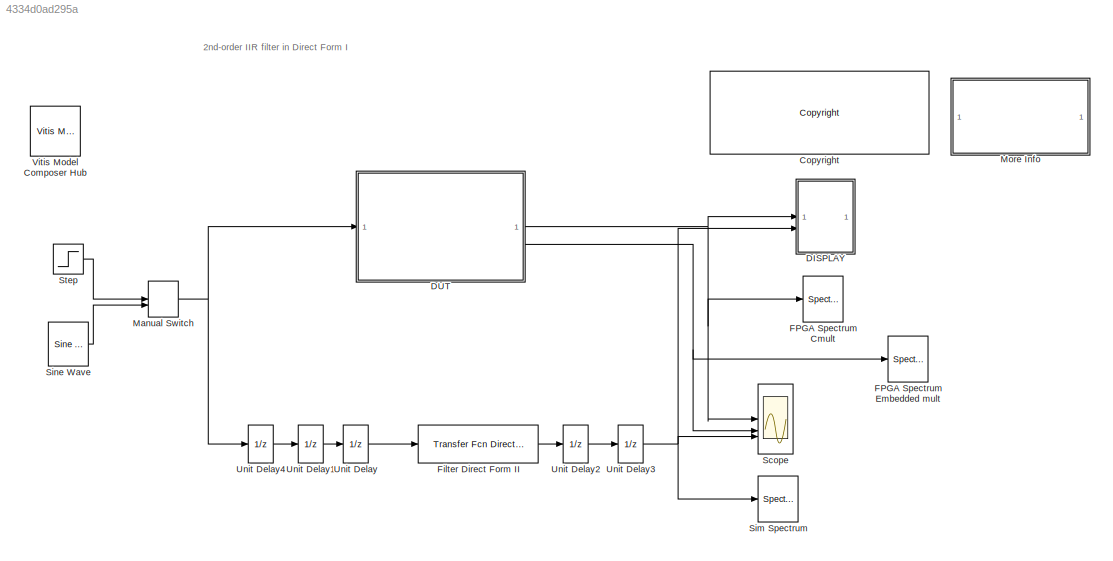
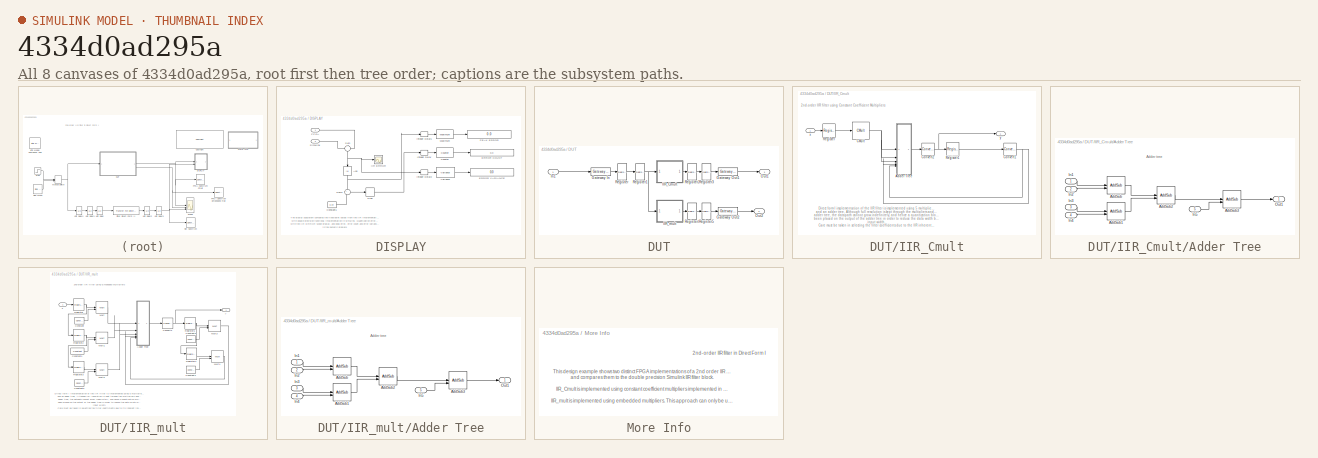
[diagram: thumbnail index - all 8 canvases of the model, root first then tree order]
MODEL slx_4334d0ad295a
KIND model
CONFIG AbsTol = auto
CONFIG EnableMultiTasking = off
CONFIG FixedStep = auto
CONFIG MaxStep = auto
CONFIG MinStep = auto
CONFIG PreLoadFcn = IIR_DFormI_PreLoadFcn
CONFIG RelTol = 1e-3
CONFIG SampleTimeConstraint = Unconstrained
CONFIG SolverName = VariableStepDiscrete
CONFIG StartTime = 0.0
CONFIG StopTime = 20000
BLOCK [Reference] <copyright redacted>
  SourceBlock = hdlUtilities/<copyright redacted>
  SourceType = Xilinx <copyright redacted>
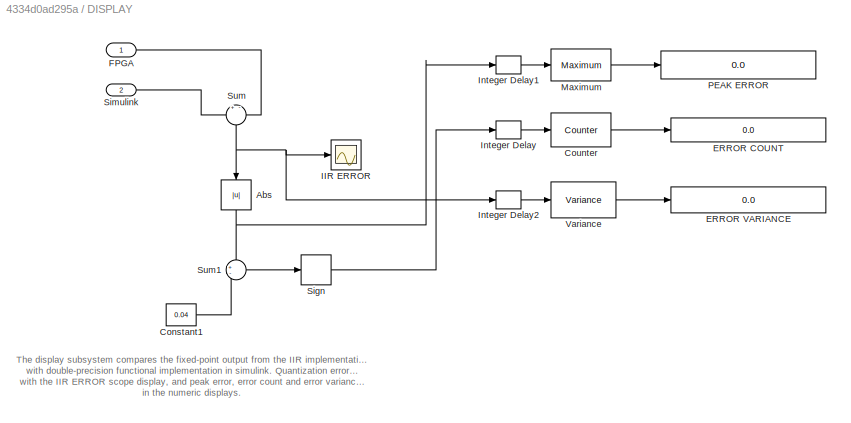
BLOCK [SubSystem] DISPLAY
  NameLocation = top
  TreatAsAtomicUnit = on
BLOCK [Abs] DISPLAY/Abs
  NameLocation = left
BLOCK [Constant] DISPLAY/Constant1
  Value = 0.04
BLOCK [Reference] DISPLAY/Counter  REF=dspswit3/Counter
  SourceBlock = dspswit3/Counter
  SourceType = Counter
BLOCK [Display] DISPLAY/ERROR COUNT
  Decimation = 1
  Format = long_e
BLOCK [Display] DISPLAY/ERROR VARIANCE
  Decimation = 1
  Format = long_e
BLOCK [Inport] DISPLAY/FPGA
BLOCK [Scope] DISPLAY/IIR ERROR
  Floating = off
  NumInputPorts = 1
  ScopeSpecificationString = Simulink.scopes.TimeScopeBlockCfg('CurrentConfiguration', extmgr.ConfigurationSet(extmgr.Configuration('Core','General UI',true,'DisplayFullSourceName',false,'ShowMainToolbar',true),extmgr.Configuration('Sources','WiredSimulink',true,'DataLogging',false,'DataLoggingVariableName','ScopeData2','DataLoggingLimitDataPoints',true,'DataLoggingMaxPoints','5000','DataLoggingDecimateData',true,'DataLogging...<+1579ch>
BLOCK [Delay] DISPLAY/Integer Delay
  DelayLength = 1
  InitialCondition = 0
  InputPortMap = u0
  UseCircularBuffer = on
  UserDataPersistent = on
BLOCK [Delay] DISPLAY/Integer Delay1
  DelayLength = 1
  InitialCondition = 0
  InputPortMap = u0
  UseCircularBuffer = on
  UserDataPersistent = on
BLOCK [Delay] DISPLAY/Integer Delay2
  DelayLength = 1
  InitialCondition = 0
  InputPortMap = u0
  UseCircularBuffer = on
  UserDataPersistent = on
BLOCK [Reference] DISPLAY/Maximum  REF=dspstat3/Maximum
  SourceBlock = dspstat3/Maximum
  SourceType = Maximum
  UserDataPersistent = on
BLOCK [Display] DISPLAY/PEAK ERROR
  Decimation = 1
  Format = long_e
BLOCK [Signum] DISPLAY/Sign
BLOCK [Inport] DISPLAY/Simulink
  Port = 2
BLOCK [Sum] DISPLAY/Sum
  InputSameDT = on
  Inputs = +-
  NameLocation = left
  OutDataTypeStr = Inherit: Same as first input
  SaturateOnIntegerOverflow = on
BLOCK [Sum] DISPLAY/Sum1
  InputSameDT = on
  Inputs = +-
  OutDataTypeStr = Inherit: Same as first input
  SaturateOnIntegerOverflow = on
BLOCK [Reference] DISPLAY/Variance  REF=dspstat3/Variance
  SourceBlock = dspstat3/Variance
  SourceType = Variance
  UserDataPersistent = on
BLOCK [SubSystem] DUT
BLOCK [Reference] DUT/Gateway In  REF=hdlBasic/Gateway In
  SourceBlock = hdlBasic/Gateway In
  SourceType = Gateway In Block
BLOCK [Reference] DUT/Gateway Out1  REF=hdlBasic/Gateway Out
  SourceBlock = hdlBasic/Gateway Out
  SourceType = Gateway Out Block
BLOCK [Reference] DUT/Gateway Out2  REF=hdlBasic/Gateway Out
  SourceBlock = hdlBasic/Gateway Out
  SourceType = Gateway Out Block
BLOCK [SubSystem] DUT/IIR_Cmult
BLOCK [SubSystem] DUT/IIR_Cmult/Adder Tree
BLOCK [Reference] DUT/IIR_Cmult/Adder Tree/AddSub  REF=hdlBasic/AddSub
  SourceBlock = hdlBasic/AddSub
  SourceType = Adder/Subtracter Block
BLOCK [Reference] DUT/IIR_Cmult/Adder Tree/AddSub1  REF=hdlBasic/AddSub
  SourceBlock = hdlBasic/AddSub
  SourceType = Adder/Subtracter Block
BLOCK [Reference] DUT/IIR_Cmult/Adder Tree/AddSub2  REF=hdlBasic/AddSub
  SourceBlock = hdlBasic/AddSub
  SourceType = Adder/Subtracter Block
BLOCK [Reference] DUT/IIR_Cmult/Adder Tree/AddSub3  REF=hdlBasic/AddSub
  SourceBlock = hdlBasic/AddSub
  SourceType = Adder/Subtracter Block
BLOCK [Inport] DUT/IIR_Cmult/Adder Tree/In1
BLOCK [Inport] DUT/IIR_Cmult/Adder Tree/In2
  Port = 2
BLOCK [Inport] DUT/IIR_Cmult/Adder Tree/In3
  Port = 3
BLOCK [Inport] DUT/IIR_Cmult/Adder Tree/In4
  Port = 4
BLOCK [Inport] DUT/IIR_Cmult/Adder Tree/In5
  Port = 5
BLOCK [Outport] DUT/IIR_Cmult/Adder Tree/Out1
  VectorParamsAs1DForOutWhenUnconnected = off
BLOCK [Reference] DUT/IIR_Cmult/CMult  REF=hdlBasic/CMult
  SourceBlock = hdlBasic/CMult
  SourceType = Constant Multiplier Block
BLOCK [Reference] DUT/IIR_Cmult/Convert1  REF=hdlBasic/Convert
  SourceBlock = hdlBasic/Convert
  SourceType = Type Converter Block
BLOCK [Reference] DUT/IIR_Cmult/Convert2  REF=hdlBasic/Convert
  SourceBlock = hdlBasic/Convert
  SourceType = Type Converter Block
BLOCK [Reference] DUT/IIR_Cmult/Register  REF=hdlBasic/Register
  SourceBlock = hdlBasic/Register
  SourceType = Register Block
BLOCK [Reference] DUT/IIR_Cmult/Register1  REF=hdlBasic/Register
  SourceBlock = hdlBasic/Register
  SourceType = Register Block
BLOCK [Inport] DUT/IIR_Cmult/x
BLOCK [Outport] DUT/IIR_Cmult/y
  VectorParamsAs1DForOutWhenUnconnected = off
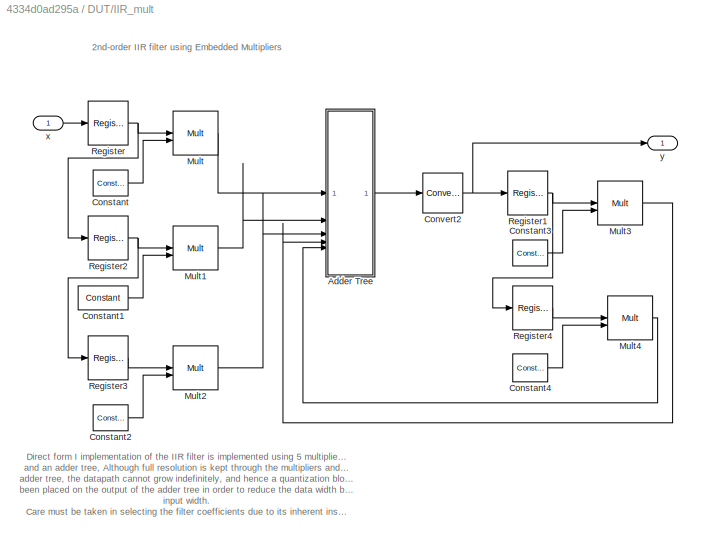
BLOCK [SubSystem] DUT/IIR_mult
BLOCK [SubSystem] DUT/IIR_mult/Adder Tree
BLOCK [Reference] DUT/IIR_mult/Adder Tree/AddSub  REF=hdlBasic/AddSub
  SourceBlock = hdlBasic/AddSub
  SourceType = Adder/Subtracter Block
BLOCK [Reference] DUT/IIR_mult/Adder Tree/AddSub1  REF=hdlBasic/AddSub
  SourceBlock = hdlBasic/AddSub
  SourceType = Adder/Subtracter Block
BLOCK [Reference] DUT/IIR_mult/Adder Tree/AddSub2  REF=hdlBasic/AddSub
  SourceBlock = hdlBasic/AddSub
  SourceType = Adder/Subtracter Block
BLOCK [Reference] DUT/IIR_mult/Adder Tree/AddSub3  REF=hdlBasic/AddSub
  SourceBlock = hdlBasic/AddSub
  SourceType = Adder/Subtracter Block
BLOCK [Inport] DUT/IIR_mult/Adder Tree/In1
BLOCK [Inport] DUT/IIR_mult/Adder Tree/In2
  Port = 2
BLOCK [Inport] DUT/IIR_mult/Adder Tree/In3
  Port = 3
BLOCK [Inport] DUT/IIR_mult/Adder Tree/In4
  Port = 4
BLOCK [Inport] DUT/IIR_mult/Adder Tree/In5
  Port = 5
BLOCK [Outport] DUT/IIR_mult/Adder Tree/Out1
  VectorParamsAs1DForOutWhenUnconnected = off
BLOCK [Reference] DUT/IIR_mult/Constant  REF=hdlBasic/Constant
  SourceBlock = hdlBasic/Constant
  SourceType = Constant Block Block
BLOCK [Reference] DUT/IIR_mult/Constant1  REF=hdlBasic/Constant
  SourceBlock = hdlBasic/Constant
  SourceType = Constant Block Block
BLOCK [Reference] DUT/IIR_mult/Constant2  REF=hdlBasic/Constant
  SourceBlock = hdlBasic/Constant
  SourceType = Constant Block Block
BLOCK [Reference] DUT/IIR_mult/Constant3  REF=hdlBasic/Constant
  SourceBlock = hdlBasic/Constant
  SourceType = Constant Block Block
BLOCK [Reference] DUT/IIR_mult/Constant4  REF=hdlBasic/Constant
  SourceBlock = hdlBasic/Constant
  SourceType = Constant Block Block
BLOCK [Reference] DUT/IIR_mult/Convert2  REF=hdlBasic/Convert
  SourceBlock = hdlBasic/Convert
  SourceType = Type Converter Block
BLOCK [Reference] DUT/IIR_mult/Mult  REF=hdlBasic/Mult
  SourceBlock = hdlBasic/Mult
  SourceType = Multiplier Block
BLOCK [Reference] DUT/IIR_mult/Mult1  REF=hdlBasic/Mult
  SourceBlock = hdlBasic/Mult
  SourceType = Multiplier Block
BLOCK [Reference] DUT/IIR_mult/Mult2  REF=hdlBasic/Mult
  SourceBlock = hdlBasic/Mult
  SourceType = Multiplier Block
BLOCK [Reference] DUT/IIR_mult/Mult3  REF=hdlBasic/Mult
  SourceBlock = hdlBasic/Mult
  SourceType = Multiplier Block
BLOCK [Reference] DUT/IIR_mult/Mult4  REF=hdlBasic/Mult
  SourceBlock = hdlBasic/Mult
  SourceType = Multiplier Block
BLOCK [Reference] DUT/IIR_mult/Register  REF=hdlBasic/Register
  SourceBlock = hdlBasic/Register
  SourceType = Register Block
BLOCK [Reference] DUT/IIR_mult/Register1  REF=hdlBasic/Register
  SourceBlock = hdlBasic/Register
  SourceType = Register Block
BLOCK [Reference] DUT/IIR_mult/Register2  REF=hdlBasic/Register
  SourceBlock = hdlBasic/Register
  SourceType = Register Block
BLOCK [Reference] DUT/IIR_mult/Register3  REF=hdlBasic/Register
  SourceBlock = hdlBasic/Register
  SourceType = Register Block
BLOCK [Reference] DUT/IIR_mult/Register4  REF=hdlBasic/Register
  SourceBlock = hdlBasic/Register
  SourceType = Register Block
BLOCK [Inport] DUT/IIR_mult/x
BLOCK [Outport] DUT/IIR_mult/y
  VectorParamsAs1DForOutWhenUnconnected = off
BLOCK [Inport] DUT/In1
BLOCK [Outport] DUT/Out1
BLOCK [Outport] DUT/Out2
  Port = 2
BLOCK [Reference] DUT/Register  REF=hdlBasic/Register
  SourceBlock = hdlBasic/Register
  SourceType = Register Block
BLOCK [Reference] DUT/Register1  REF=hdlBasic/Register
  SourceBlock = hdlBasic/Register
  SourceType = Register Block
BLOCK [Reference] DUT/Register2  REF=hdlBasic/Register
  SourceBlock = hdlBasic/Register
  SourceType = Register Block
BLOCK [Reference] DUT/Register3  REF=hdlBasic/Register
  SourceBlock = hdlBasic/Register
  SourceType = Register Block
BLOCK [Reference] DUT/Register4  REF=hdlBasic/Register
  SourceBlock = hdlBasic/Register
  SourceType = Register Block
BLOCK [Reference] DUT/Register5  REF=hdlBasic/Register
  SourceBlock = hdlBasic/Register
  SourceType = Register Block
BLOCK [SpectrumAnalyzer] FPGA Spectrum Cmult
  AllowFFTLengthLessThanSamplesPerUpdate = on
  AveragingMethod = Exponential
  CenterFrequency = 0.25
  ChannelNames = [""]
  DefaultConfigurationName = spbscopes.SpectrumAnalyzerBlockCfg
  FFTLength = 128
  GraphicalSettings = {"GraphicalSettings":{"SpectralMask":{"CustomReferenceLevel":"0","EnabledMasks":"None","LowerMask":"-Inf","MaskFrequencyOffset":"0","ReferenceLevel":"Custom","SelectedChannel":"1","UpperMask":"Inf"},"Style":{"AxesColor":"[0 0 0]","DefaultMarker":"none","DisplayName":"","LabelsColor":"[0.686274509804 0.686274509804 0.686274509804]","Line":"1","LineColor":"[[1      0.9098     0.39216]]","LineStyle":...<+215ch>  <repeated x3 — deduplicated; at blocks: FPGA Spectrum Cmult, FPGA Spectrum Embedded mult, Sim Spectrum>
  Method = Welch
  PlotAsTwoSidedSpectrum = off
  RBW = 0.00293262012
  RBWSource = Property
  SampleRate = 1
  ScopeFrameLocation = window
  ScopeSpecificationString = spbscopes.SpectrumAnalyzerBlockCfg('CurrentConfiguration', extmgr.ConfigurationSet(extmgr.Configuration('Core','General UI',true,'FigureColor',[0.16        0.16        0.16]),extmgr.Configuration('Visuals','Spectrum',true,'Title','','YLabel','Magnitude','MinYLim','-419.8492','MaxYLim','73.7242','Legend',false,'AxesProperties',struct('XGrid',{'on','on'},'YGrid',{'on','on'},'ZGrid',{'on','on'},'Colo...<+2317ch>
  Span = 0.5
  SpectrumType = Power density
  StartFrequency = 0
  StopFrequency = 0.5
  Visible = on
  WasSavedAsWebScope = on
  WindowPosition = [465.000000,290.000000,423.000000,236.000000,]
  YLabel = Magnitude
  YLimits = [-419.8492,73.7242]
BLOCK [SpectrumAnalyzer] FPGA Spectrum Embedded mult
  AllowFFTLengthLessThanSamplesPerUpdate = on
  AveragingMethod = Exponential
  CenterFrequency = 0.25
  ChannelNames = [""]
  DefaultConfigurationName = spbscopes.SpectrumAnalyzerBlockCfg
  FFTLength = 128
  Method = Welch
  PlotAsTwoSidedSpectrum = off
  RBW = 0.00293262012
  RBWSource = Property
  SampleRate = 1
  ScopeFrameLocation = window
  ScopeSpecificationString = spbscopes.SpectrumAnalyzerBlockCfg('CurrentConfiguration', extmgr.ConfigurationSet(extmgr.Configuration('Core','General UI',true,'FigureColor',[0.16        0.16        0.16]),extmgr.Configuration('Visuals','Spectrum',true,'Title','','YLabel','Magnitude','MinYLim','-3637.3349','MaxYLim','405.3922','Legend',false,'AxesProperties',struct('XGrid',{'on','on'},'YGrid',{'on','on'},'ZGrid',{'on','on'},'Co...<+2320ch>
  Span = 0.5
  SpectrumType = Power density
  StartFrequency = 0
  StopFrequency = 0.5
  Visible = on
  WasSavedAsWebScope = on
  WindowPosition = [1002.000000,398.000000,423.000000,236.000000,]
  YLabel = Magnitude
  YLimits = [-3637.3349,405.3922]
BLOCK [Reference] Filter Direct Form II  REF=simulink/Additional Math
& Discrete/Additional
Discrete/Transfer Fcn
Direct Form II
  SourceBlock = simulink/Additional Math\n& Discrete/Additional\nDiscrete/Transfer Fcn\nDirect Form II
  SourceType = Transfer Fcn Direct Form II
BLOCK [ManualSwitch] Manual Switch
  CurrentSetting = 0
BLOCK [SubSystem] More Info
BLOCK [Scope] Scope
  Floating = off
  NumInputPorts = 3
  ScopeSpecificationString = Simulink.scopes.TimeScopeBlockCfg('CurrentConfiguration', extmgr.ConfigurationSet(extmgr.Configuration('Core','General UI',true,'DisplayFullSourceName',false,'ShowMainToolbar',true),extmgr.Configuration('Sources','WiredSimulink',true,'DataLogging',false,'DataLoggingVariableName','ScopeData1','DataLoggingLimitDataPoints',true,'DataLoggingMaxPoints','5000','DataLoggingDecimateData',true,'DataLogging...<+3525ch>
BLOCK [SpectrumAnalyzer] Sim Spectrum
  AllowFFTLengthLessThanSamplesPerUpdate = on
  AveragingMethod = Exponential
  CenterFrequency = 0.25
  ChannelNames = [""]
  DefaultConfigurationName = spbscopes.SpectrumAnalyzerBlockCfg
  FFTLength = 128
  Method = Welch
  PlotAsTwoSidedSpectrum = off
  RBW = 0.00293262012
  RBWSource = Property
  SampleRate = 1
  ScopeFrameLocation = window
  ScopeSpecificationString = spbscopes.SpectrumAnalyzerBlockCfg('CurrentConfiguration', extmgr.ConfigurationSet(extmgr.Configuration('Core','General UI',true,'FigureColor',[0.16        0.16        0.16]),extmgr.Configuration('Visuals','Spectrum',true,'Title','','YLabel','Magnitude','MinYLim','-374.0793','MaxYLim','42.8241','Legend',false,'AxesProperties',struct('XGrid',{'on','on'},'YGrid',{'on','on'},'ZGrid',{'on','on'},'Colo...<+2317ch>
  Span = 0.5
  SpectrumType = Power density
  StartFrequency = 0
  StopFrequency = 0.5
  Visible = on
  WasSavedAsWebScope = on
  WindowPosition = [458.000000,283.000000,437.000000,227.000000,]
  YLabel = Magnitude
  YLimits = [-374.0793,42.8241]
BLOCK [Reference] Sine Wave  REF=dspsrcs4/Sine Wave
  SourceBlock = dspsrcs4/Sine Wave
  SourceType = Sine Wave
BLOCK [Step] Step
  After = 0
  Before = 1
  SampleTime = 1
BLOCK [UnitDelay] Unit Delay
  HasFrameUpgradeWarning = on
  SampleTime = Fs
BLOCK [UnitDelay] Unit Delay1
  HasFrameUpgradeWarning = on
  SampleTime = Fs
BLOCK [UnitDelay] Unit Delay2
  HasFrameUpgradeWarning = on
  SampleTime = Fs
BLOCK [UnitDelay] Unit Delay3
  HasFrameUpgradeWarning = on
  SampleTime = Fs
BLOCK [UnitDelay] Unit Delay4
  HasFrameUpgradeWarning = on
  SampleTime = Fs
BLOCK [Reference] Vitis Model Composer Hub  REF=vmcUtilities/Vitis Model Composer Hub
  SourceBlock = vmcUtilities/Vitis Model Composer Hub
  SourceType = VMC Hub
  Tag = genX
  UserDataPersistent = on
ANNOTATION (root): 2nd-order IIR filter in Direct Form I
ANNOTATION DISPLAY: The display subsystem compares the fixed-point output from the IIR implementation in FPGA with double-precision functional implementation in simulink. Quantization error can be visualized with the IIR ERROR scope display, and peak error, error count and error variance can be visualized in the numeric displays.
ANNOTATION DUT/IIR_Cmult: 2nd-order IIR filter using Constant Coefficient Multipliers
ANNOTATION DUT/IIR_Cmult: Direct form I implementation of the IIR filter is implemented using 5 multipliers, 5 registers and an adder tree, Although full resolution is kept through the multipliers and the adder tree, the datapath cannot grow indefinitely, and hence a quantization block has been placed on the output of the adder tree in order to reduce the data width back to its input width. Care must be taken in selecting ...<+940ch>
ANNOTATION DUT/IIR_Cmult/Adder Tree: Adder tree
ANNOTATION DUT/IIR_mult: 2nd-order IIR filter using Embedded Multipliers
ANNOTATION DUT/IIR_mult: Direct form I implementation of the IIR filter is implemented using 5 multipliers, 5 registers and an adder tree, Although full resolution is kept through the multipliers and the adder tree, the datapath cannot grow indefinitely, and hence a quantization block has been placed on the output of the adder tree in order to reduce the data width back to its input width. Care must be taken in selecting ...<+691ch>
ANNOTATION DUT/IIR_mult/Adder Tree: Adder tree
ANNOTATION More Info: 2nd-order IIR filter in Direct Form I
ANNOTATION More Info: This design example shows two distinct FPGA implementations of a 2nd order IIR filter in Direct Form I, and compares them to the double precision Simulink IIR filter block. IIR_Cmult is implemented using constant coefficient multipliers implemented in LUTs IIR_mult is implemented using embedded multipliers. This approach can only be used with the FPGAs that provide the embedded multipliers. Multip...<+357ch>
NET DISPLAY/Abs:1 -> DISPLAY/Integer Delay1:1, DISPLAY/Sum1:1
LINE DISPLAY/Constant1:1 -> DISPLAY/Sum1:2
LINE DISPLAY/Counter:1 -> DISPLAY/ERROR COUNT:1
LINE DISPLAY/FPGA:1 -> DISPLAY/Sum:2
LINE DISPLAY/Integer Delay1:1 -> DISPLAY/Maximum:1
LINE DISPLAY/Integer Delay2:1 -> DISPLAY/Variance:1
LINE DISPLAY/Integer Delay:1 -> DISPLAY/Counter:1
LINE DISPLAY/Maximum:1 -> DISPLAY/PEAK ERROR:1
LINE DISPLAY/Sign:1 -> DISPLAY/Integer Delay:1
LINE DISPLAY/Simulink:1 -> DISPLAY/Sum:1
LINE DISPLAY/Sum1:1 -> DISPLAY/Sign:1
NET DISPLAY/Sum:1 -> DISPLAY/Abs:1, DISPLAY/IIR ERROR:1, DISPLAY/Integer Delay2:1
LINE DISPLAY/Variance:1 -> DISPLAY/ERROR VARIANCE:1
LINE DUT/Gateway In:1 -> DUT/Register:1
LINE DUT/Gateway Out1:1 -> DUT/Out1:1
LINE DUT/Gateway Out2:1 -> DUT/Out2:1
LINE DUT/IIR_Cmult/Adder Tree/AddSub1:1 -> DUT/IIR_Cmult/Adder Tree/AddSub2:2
LINE DUT/IIR_Cmult/Adder Tree/AddSub2:1 -> DUT/IIR_Cmult/Adder Tree/AddSub3:1
LINE DUT/IIR_Cmult/Adder Tree/AddSub3:1 -> DUT/IIR_Cmult/Adder Tree/Out1:1
LINE DUT/IIR_Cmult/Adder Tree/AddSub:1 -> DUT/IIR_Cmult/Adder Tree/AddSub2:1
LINE DUT/IIR_Cmult/Adder Tree/In1:1 -> DUT/IIR_Cmult/Adder Tree/AddSub:1
LINE DUT/IIR_Cmult/Adder Tree/In2:1 -> DUT/IIR_Cmult/Adder Tree/AddSub:2
LINE DUT/IIR_Cmult/Adder Tree/In3:1 -> DUT/IIR_Cmult/Adder Tree/AddSub1:1
LINE DUT/IIR_Cmult/Adder Tree/In4:1 -> DUT/IIR_Cmult/Adder Tree/AddSub1:2
LINE DUT/IIR_Cmult/Adder Tree/In5:1 -> DUT/IIR_Cmult/Adder Tree/AddSub3:2
LINE DUT/IIR_Cmult/Adder Tree:1 -> DUT/IIR_Cmult/Convert2:1
NET DUT/IIR_Cmult/CMult:1 -> DUT/IIR_Cmult/Adder Tree:1, DUT/IIR_Cmult/Adder Tree:2, DUT/IIR_Cmult/Adder Tree:3
NET DUT/IIR_Cmult/Convert1:1 -> DUT/IIR_Cmult/Adder Tree:4, DUT/IIR_Cmult/Adder Tree:5
NET DUT/IIR_Cmult/Convert2:1 -> DUT/IIR_Cmult/Register1:1, DUT/IIR_Cmult/y:1
LINE DUT/IIR_Cmult/Register1:1 -> DUT/IIR_Cmult/Convert1:1
LINE DUT/IIR_Cmult/Register:1 -> DUT/IIR_Cmult/CMult:1
LINE DUT/IIR_Cmult/x:1 -> DUT/IIR_Cmult/Register:1
LINE DUT/IIR_Cmult:1 -> DUT/Register2:1
LINE DUT/IIR_mult/Adder Tree/AddSub1:1 -> DUT/IIR_mult/Adder Tree/AddSub2:2
LINE DUT/IIR_mult/Adder Tree/AddSub2:1 -> DUT/IIR_mult/Adder Tree/AddSub3:1
LINE DUT/IIR_mult/Adder Tree/AddSub3:1 -> DUT/IIR_mult/Adder Tree/Out1:1
LINE DUT/IIR_mult/Adder Tree/AddSub:1 -> DUT/IIR_mult/Adder Tree/AddSub2:1
LINE DUT/IIR_mult/Adder Tree/In1:1 -> DUT/IIR_mult/Adder Tree/AddSub:1
LINE DUT/IIR_mult/Adder Tree/In2:1 -> DUT/IIR_mult/Adder Tree/AddSub:2
LINE DUT/IIR_mult/Adder Tree/In3:1 -> DUT/IIR_mult/Adder Tree/AddSub1:1
LINE DUT/IIR_mult/Adder Tree/In4:1 -> DUT/IIR_mult/Adder Tree/AddSub1:2
LINE DUT/IIR_mult/Adder Tree/In5:1 -> DUT/IIR_mult/Adder Tree/AddSub3:2
LINE DUT/IIR_mult/Adder Tree:1 -> DUT/IIR_mult/Convert2:1
LINE DUT/IIR_mult/Constant1:1 -> DUT/IIR_mult/Mult1:2
LINE DUT/IIR_mult/Constant2:1 -> DUT/IIR_mult/Mult2:2
LINE DUT/IIR_mult/Constant3:1 -> DUT/IIR_mult/Mult3:2
LINE DUT/IIR_mult/Constant4:1 -> DUT/IIR_mult/Mult4:2
LINE DUT/IIR_mult/Constant:1 -> DUT/IIR_mult/Mult:2
NET DUT/IIR_mult/Convert2:1 -> DUT/IIR_mult/Register1:1, DUT/IIR_mult/y:1
LINE DUT/IIR_mult/Mult1:1 -> DUT/IIR_mult/Adder Tree:2
LINE DUT/IIR_mult/Mult2:1 -> DUT/IIR_mult/Adder Tree:3
LINE DUT/IIR_mult/Mult3:1 -> DUT/IIR_mult/Adder Tree:4
LINE DUT/IIR_mult/Mult4:1 -> DUT/IIR_mult/Adder Tree:5
LINE DUT/IIR_mult/Mult:1 -> DUT/IIR_mult/Adder Tree:1
NET DUT/IIR_mult/Register1:1 -> DUT/IIR_mult/Mult3:1, DUT/IIR_mult/Register4:1
NET DUT/IIR_mult/Register2:1 -> DUT/IIR_mult/Mult1:1, DUT/IIR_mult/Register3:1
LINE DUT/IIR_mult/Register3:1 -> DUT/IIR_mult/Mult2:1
LINE DUT/IIR_mult/Register4:1 -> DUT/IIR_mult/Mult4:1
NET DUT/IIR_mult/Register:1 -> DUT/IIR_mult/Mult:1, DUT/IIR_mult/Register2:1
LINE DUT/IIR_mult/x:1 -> DUT/IIR_mult/Register:1
LINE DUT/IIR_mult:1 -> DUT/Register4:1
LINE DUT/In1:1 -> DUT/Gateway In:1
NET DUT/Register1:1 -> DUT/IIR_Cmult:1, DUT/IIR_mult:1
LINE DUT/Register2:1 -> DUT/Register3:1
LINE DUT/Register3:1 -> DUT/Gateway Out1:1
LINE DUT/Register4:1 -> DUT/Register5:1
LINE DUT/Register5:1 -> DUT/Gateway Out2:1
LINE DUT/Register:1 -> DUT/Register1:1
NET DUT:1 -> DISPLAY:1, FPGA Spectrum Cmult:1, Scope:1
NET DUT:2 -> FPGA Spectrum Embedded mult:1, Scope:2
LINE Filter Direct Form II:1 -> Unit Delay2:1
NET Manual Switch:1 -> DUT:1, Unit Delay4:1
LINE Sine Wave:1 -> Manual Switch:2
LINE Step:1 -> Manual Switch:1
LINE Unit Delay1:1 -> Unit Delay:1
LINE Unit Delay2:1 -> Unit Delay3:1
NET Unit Delay3:1 -> DISPLAY:2, Scope:3, Sim Spectrum:1
LINE Unit Delay4:1 -> Unit Delay1:1
LINE Unit Delay:1 -> Filter Direct Form II:1
note: NET lines group one-source signal fan-out (src -> all destinations, sorted); 1:1 wires keep LINE
